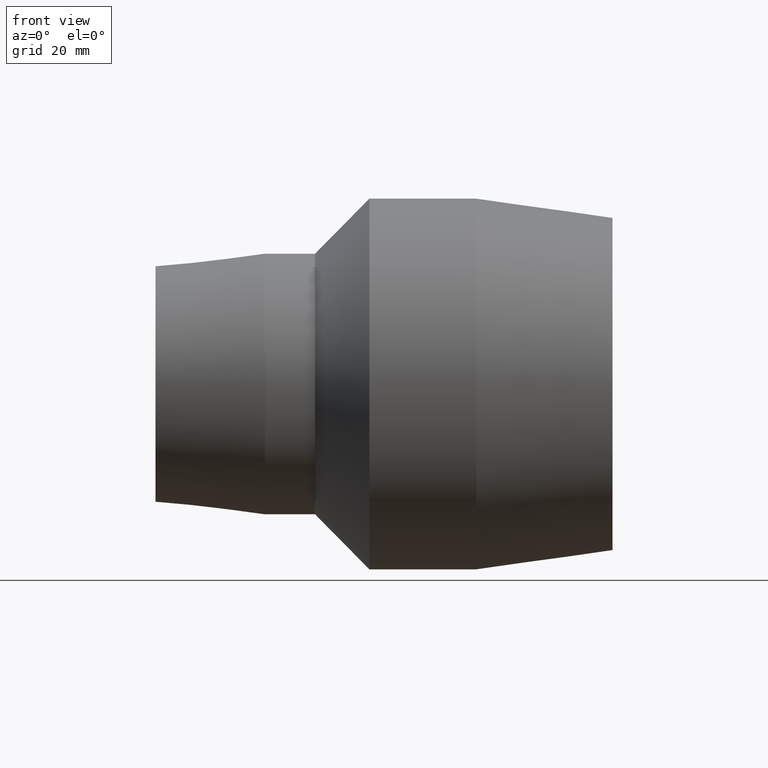
[diagram: clean part render]
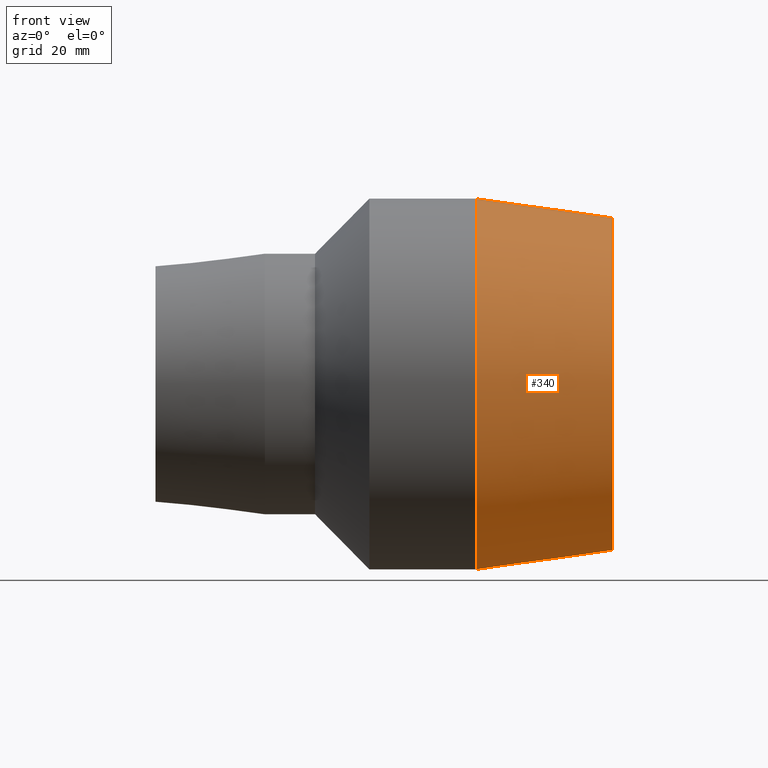
[diagram: same view with one face highlighted and labeled with its STEP entity id]
A machine part, front view. The second image highlights one B-rep face of the part: STEP entity #340.
In plain terms, the highlighted conical surface has half-angle 7.753 deg.
Its self-contained STEP definition (entity closure, byte-faithful):
#15=B_SPLINE_CURVE_WITH_KNOTS('',3,(#561,#562,#563,#564,#565,#566,#567,
#568,#569,#570,#571,#572,#573,#574,#575,#576,#577,#578,#579,#580,#581,#582,
#583,#584,#585,#586,#587,#588,#589,#590,#591,#592,#593,#594),
 .UNSPECIFIED.,.T.,.F.,(4,2,2,2,2,2,2,2,2,2,2,2,2,2,2,2,4),(0.,0.356719386622491,
0.713438773244983,1.07138006760685,1.42932136196871,1.78726265633058,2.14520395069245,
2.50192333731494,2.85864272393743,3.23533322567254,3.61202372740764,3.9811345729403,
4.35024541847296,4.71935626400562,5.08846710953828,5.46515761127339,5.8418481130085),
 .UNSPECIFIED.);
#20=CONICAL_SURFACE('',#387,55.1,7.75316187455886);
#38=FACE_BOUND('',#127,.T.);
#39=FACE_BOUND('',#128,.T.);
#82=FACE_OUTER_BOUND('',#126,.T.);
#126=EDGE_LOOP('',(#279));
#127=EDGE_LOOP('',(#280));
#128=EDGE_LOOP('',(#281));
#173=CIRCLE('',#386,58.);
#174=CIRCLE('',#388,52.2);
#195=VERTEX_POINT('',#560);
#204=VERTEX_POINT('',#652);
#205=VERTEX_POINT('',#655);
#226=EDGE_CURVE('',#195,#195,#15,.T.);
#235=EDGE_CURVE('',#204,#204,#173,.T.);
#236=EDGE_CURVE('',#205,#205,#174,.T.);
#279=ORIENTED_EDGE('',*,*,#236,.F.);
#280=ORIENTED_EDGE('',*,*,#226,.T.);
#281=ORIENTED_EDGE('',*,*,#235,.T.);
#340=ADVANCED_FACE('',(#82,#38,#39),#20,.T.);
#386=AXIS2_PLACEMENT_3D('',#653,#476,#477);
#387=AXIS2_PLACEMENT_3D('',#654,#478,#479);
#388=AXIS2_PLACEMENT_3D('',#656,#480,#481);
#476=DIRECTION('center_axis',(1.,1.83697019872103E-16,0.));
#477=DIRECTION('ref_axis',(0.,0.,-1.));
#478=DIRECTION('center_axis',(-1.,-1.83697019872103E-16,0.));
#479=DIRECTION('ref_axis',(-1.72213011695957E-16,1.,0.));
#480=DIRECTION('center_axis',(1.,1.83697019872103E-16,0.));
#481=DIRECTION('ref_axis',(0.,0.,-1.));
#560=CARTESIAN_POINT('',(57.5481836105917,53.2299635646628,-9.66082501600659));
#561=CARTESIAN_POINT('Ctrl Pts',(57.5481836105916,53.2299635646629,-9.66082501600659));
#562=CARTESIAN_POINT('Ctrl Pts',(58.7263783438614,53.0721304803853,-9.63217953690364));
#563=CARTESIAN_POINT('Ctrl Pts',(59.9835725402413,52.9477047153986,-9.36863375599165));
#564=CARTESIAN_POINT('Ctrl Pts',(62.2925958683325,52.7985309098067,-8.35692429441373));
#565=CARTESIAN_POINT('Ctrl Pts',(63.3442412262808,52.7714281451636,-7.60868976447405));
#566=CARTESIAN_POINT('Ctrl Pts',(65.0024181977516,52.7627737679959,-5.89835006488673));
#567=CARTESIAN_POINT('Ctrl Pts',(65.7199168392218,52.7803225615052,-4.82029190276728));
#568=CARTESIAN_POINT('Ctrl Pts',(66.6699060548797,52.8130484795999,-2.46769177647008));
#569=CARTESIAN_POINT('Ctrl Pts',(66.9024432524691,52.825958430415,-1.19313764787289));
#570=CARTESIAN_POINT('Ctrl Pts',(66.9024432524691,52.825958430415,1.19313764787289));
#571=CARTESIAN_POINT('Ctrl Pts',(66.6699060548797,52.8130484795999,2.46769177647007));
#572=CARTESIAN_POINT('Ctrl Pts',(65.7199168392218,52.7803225615052,4.82029190276728));
#573=CARTESIAN_POINT('Ctrl Pts',(65.0024181977516,52.7627737679959,5.89835006488673));
#574=CARTESIAN_POINT('Ctrl Pts',(63.3442412262808,52.7714281451636,7.60868976447405));
#575=CARTESIAN_POINT('Ctrl Pts',(62.2925958683325,52.7985309098067,8.35692429441373));
#576=CARTESIAN_POINT('Ctrl Pts',(59.9835725402413,52.9477047153986,9.36863375599165));
#577=CARTESIAN_POINT('Ctrl Pts',(58.7263783438614,53.0721304803853,9.63217953690365));
#578=CARTESIAN_POINT('Ctrl Pts',(56.3040270498304,53.3966330139178,9.69107422673186));
#579=CARTESIAN_POINT('Ctrl Pts',(54.9818159087846,53.6225736144349,9.46469462535287));
#580=CARTESIAN_POINT('Ctrl Pts',(52.5537966176185,54.120165393018,8.48980499319651));
#581=CARTESIAN_POINT('Ctrl Pts',(51.4473360995171,54.38924049634,7.74160670864379));
#582=CARTESIAN_POINT('Ctrl Pts',(49.7160981717156,54.8438134943203,6.01638296791128));
#583=CARTESIAN_POINT('Ctrl Pts',(48.968780540398,55.060439211997,4.9303115256753));
#584=CARTESIAN_POINT('Ctrl Pts',(47.9735435698586,55.35807997905,2.5375186588351));
#585=CARTESIAN_POINT('Ctrl Pts',(47.7259791570658,55.4368385185216,1.23036948510887));
#586=CARTESIAN_POINT('Ctrl Pts',(47.7259791570658,55.4368385185216,-1.23036948510886));
#587=CARTESIAN_POINT('Ctrl Pts',(47.9735435698586,55.35807997905,-2.53751865883509));
#588=CARTESIAN_POINT('Ctrl Pts',(48.968780540398,55.060439211997,-4.9303115256753));
#589=CARTESIAN_POINT('Ctrl Pts',(49.7160981717156,54.8438134943203,-6.01638296791128));
#590=CARTESIAN_POINT('Ctrl Pts',(51.4473360995171,54.38924049634,-7.74160670864379));
#591=CARTESIAN_POINT('Ctrl Pts',(52.5537966176185,54.120165393018,-8.48980499319651));
#592=CARTESIAN_POINT('Ctrl Pts',(54.9818159087846,53.6225736144349,-9.46469462535287));
#593=CARTESIAN_POINT('Ctrl Pts',(56.3040270498304,53.3966330139178,-9.69107422673186));
#594=CARTESIAN_POINT('Ctrl Pts',(57.5481836105916,53.2299635646629,-9.66082501600659));
#652=CARTESIAN_POINT('',(28.9,58.,0.));
#653=CARTESIAN_POINT('Origin',(28.9,1.84431807951591E-14,0.));
#654=CARTESIAN_POINT('Origin',(50.2,2.23559273184349E-14,0.));
#655=CARTESIAN_POINT('',(71.5,52.2,0.));
#656=CARTESIAN_POINT('Origin',(71.5,2.62686738417107E-14,0.));